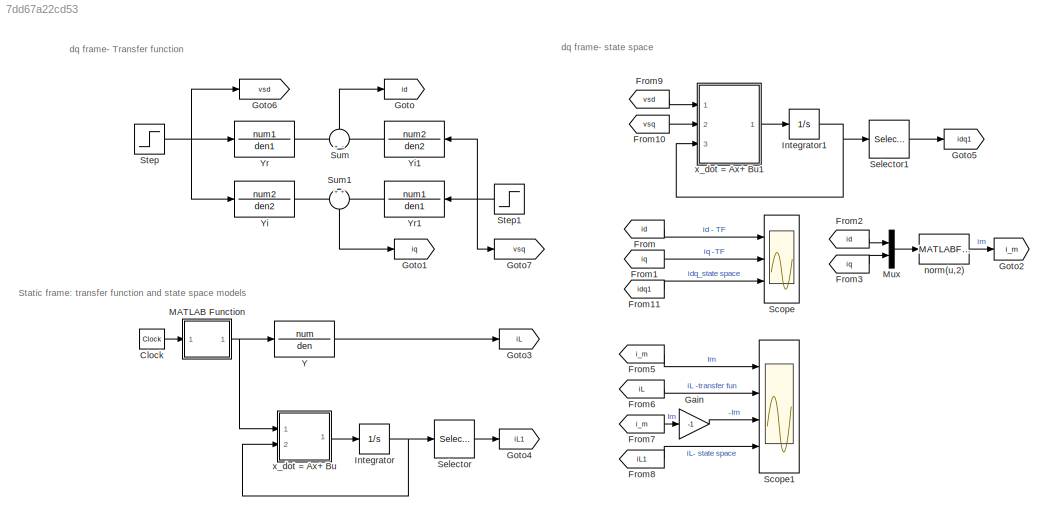
MODEL slx_7dd67a22cd53
KIND model
CONFIG AbsTol = auto
CONFIG EnableMultiTasking = off
CONFIG FixedStep = auto
CONFIG MaxStep = 1e-4
CONFIG MinStep = auto
CONFIG RelTol = 1e-3
CONFIG SampleTimeConstraint = Unconstrained
CONFIG SolverName = VariableStepAuto
CONFIG StartTime = 0.0
CONFIG StopTime = 0.5
BLOCK [Clock] Clock
BLOCK [From] From
  GotoTag = id
BLOCK [From] From1
  GotoTag = iq
BLOCK [From] From10
  GotoTag = vsq
BLOCK [From] From11
  GotoTag = idq1
BLOCK [From] From2
  GotoTag = id
BLOCK [From] From3
  GotoTag = iq
BLOCK [From] From5
  GotoTag = i_m
BLOCK [From] From6
  GotoTag = iL
BLOCK [From] From7
  GotoTag = i_m
BLOCK [From] From8
  GotoTag = iL1
BLOCK [From] From9
  GotoTag = vsd
BLOCK [Gain] Gain
  Gain = -1
BLOCK [Goto] Goto
  GotoTag = id
BLOCK [Goto] Goto1
  GotoTag = iq
BLOCK [Goto] Goto2
  GotoTag = i_m
BLOCK [Goto] Goto3
  GotoTag = iL
BLOCK [Goto] Goto4
  GotoTag = iL1
BLOCK [Goto] Goto5
  GotoTag = idq1
BLOCK [Goto] Goto6
  GotoTag = vsd
BLOCK [Goto] Goto7
  GotoTag = vsq
BLOCK [Integrator] Integrator
  Ports = [1, 1]
BLOCK [Integrator] Integrator1
  Ports = [1, 1]
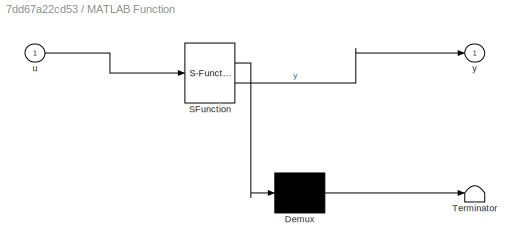
BLOCK [SubSystem] MATLAB Function
  ErrorFcn = Stateflow.Translate.translate
  PermitHierarchicalResolution = ExplicitOnly
  Ports = [1, 1]
  RequestExecContextInheritance = off
  SFBlockType = MATLAB Function
  TreatAsAtomicUnit = on
BLOCK [Demux] MATLAB Function/ Demux 
  Outputs = 1
  Ports = [1, 1]
BLOCK [S-Function] MATLAB Function/ SFunction 
  EnableBusSupport = on
  FunctionName = sf_sfun
  PortCounts = [1 2]
  Ports = [1, 2]
  SFcnIsStateOwnerBlock = off
  SFunctionDeploymentMode = off
  Tag = Stateflow S-Function 2
BLOCK [Terminator] MATLAB Function/ Terminator 
BLOCK [Inport] MATLAB Function/u
BLOCK [Outport] MATLAB Function/y
BLOCK [Mux] Mux
  DisplayOption = bar
  Inputs = 2
  Ports = [2, 1]
BLOCK [Scope] Scope
  Floating = off
  NumInputPorts = 3
  Ports = [3]
  ScopeSpecificationString = Simulink.scopes.TimeScopeBlockCfg('CurrentConfiguration', extmgr.ConfigurationSet(extmgr.Configuration('Core','General UI',true),extmgr.Configuration('Core','Source UI',true),extmgr.Configuration('Sources','WiredSimulink',true),extmgr.Configuration('Visuals','Time Domain',true,'SerializedDisplays',{struct('MinYLimReal','-5.53688','MaxYLimReal','4.34966','YLabelReal','','MinYLimMag','0.00000','MaxY...<+1452ch>
BLOCK [Scope] Scope1
  Floating = off
  NumInputPorts = 4
  Ports = [4]
  ScopeSpecificationString = Simulink.scopes.TimeScopeBlockCfg('CurrentConfiguration', extmgr.ConfigurationSet(extmgr.Configuration('Core','General UI',true),extmgr.Configuration('Core','Source UI',true),extmgr.Configuration('Sources','WiredSimulink',true,'DataLoggingVariableName','ScopeData1'),extmgr.Configuration('Visuals','Time Domain',true,'SerializedDisplays',{struct('MinYLimReal','-6.40207','MaxYLimReal','6.40207','YLab...<+1481ch>
BLOCK [Selector] Selector
  IndexOptions = Index vector (dialog)
  Indices = [1]
  InputPortWidth = 2
  OutputSizes = 1
  Ports = [1, 1]
BLOCK [Selector] Selector1
  IndexOptions = Index vector (dialog)
  Indices = [1 3]
  InputPortWidth = 4
  OutputSizes = 1
  Ports = [1, 1]
BLOCK [Step] Step
  SampleTime = 0
  Time = 0.1
BLOCK [Step] Step1
  After = 0
  SampleTime = 0
BLOCK [Sum] Sum
  Inputs = +-
  NameLocation = right
  Ports = [2, 1]
BLOCK [Sum] Sum1
  NameLocation = left
  Ports = [2, 1]
BLOCK [TransferFcn] Y
  Denominator = den
  Numerator = num
BLOCK [TransferFcn] Yi
  Denominator = den2
  Numerator = num2
BLOCK [TransferFcn] Yi1
  Denominator = den2
  Numerator = num2
BLOCK [TransferFcn] Yr
  Denominator = den1
  Numerator = num1
BLOCK [TransferFcn] Yr1
  Denominator = den1
  Numerator = num1
BLOCK [MATLABFcn] norm(u,2)
  MATLABFcn = norm(u,2)
  Ports = [1, 1]
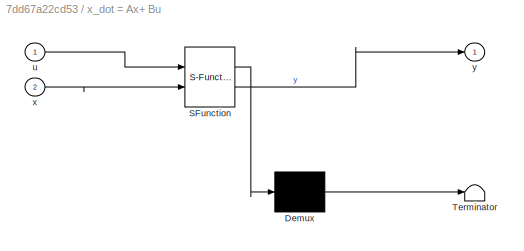
BLOCK [SubSystem] x_dot = Ax+ Bu
  ErrorFcn = Stateflow.Translate.translate
  PermitHierarchicalResolution = ExplicitOnly
  Ports = [2, 1]
  RequestExecContextInheritance = off
  SFBlockType = MATLAB Function
  TreatAsAtomicUnit = on
BLOCK [Demux] x_dot = Ax+ Bu/ Demux 
  Outputs = 1
  Ports = [1, 1]
BLOCK [S-Function] x_dot = Ax+ Bu/ SFunction 
  EnableBusSupport = on
  FunctionName = sf_sfun
  Parameters = A,B
  PortCounts = [2 2]
  Ports = [2, 2]
  SFcnIsStateOwnerBlock = off
  SFunctionDeploymentMode = off
  Tag = Stateflow S-Function 1
BLOCK [Terminator] x_dot = Ax+ Bu/ Terminator 
BLOCK [Inport] x_dot = Ax+ Bu/u
BLOCK [Inport] x_dot = Ax+ Bu/x
  Port = 2
BLOCK [Outport] x_dot = Ax+ Bu/y
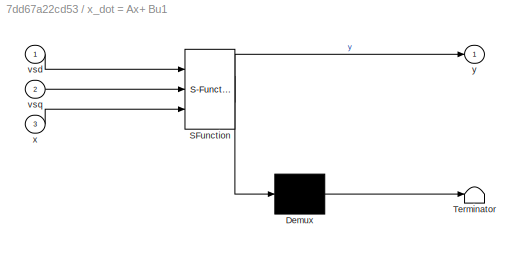
BLOCK [SubSystem] x_dot = Ax+ Bu1
  ErrorFcn = Stateflow.Translate.translate
  PermitHierarchicalResolution = ExplicitOnly
  Ports = [3, 1]
  RequestExecContextInheritance = off
  SFBlockType = MATLAB Function
  TreatAsAtomicUnit = on
BLOCK [Demux] x_dot = Ax+ Bu1/ Demux 
  Outputs = 1
  Ports = [1, 1]
BLOCK [S-Function] x_dot = Ax+ Bu1/ SFunction 
  EnableBusSupport = on
  FunctionName = sf_sfun
  Parameters = A,B
  PortCounts = [3 2]
  Ports = [3, 2]
  SFcnIsStateOwnerBlock = off
  SFunctionDeploymentMode = off
  Tag = Stateflow S-Function 3
BLOCK [Terminator] x_dot = Ax+ Bu1/ Terminator 
BLOCK [Inport] x_dot = Ax+ Bu1/vsd
BLOCK [Inport] x_dot = Ax+ Bu1/vsq
  Port = 2
BLOCK [Inport] x_dot = Ax+ Bu1/x
  Port = 3
BLOCK [Outport] x_dot = Ax+ Bu1/y
ANNOTATION (root): Static frame: transfer function and state space models
ANNOTATION (root): dq frame- Transfer function
ANNOTATION (root): dq frame- state space
LINE Clock:1 -> MATLAB Function:1
LINE From10:1 -> x_dot = Ax+ Bu1:2
LINE From11:1 -> Scope:3
LINE From1:1 -> Scope:2
LINE From2:1 -> Mux:1
LINE From3:1 -> Mux:2
LINE From5:1 -> Scope1:1
LINE From6:1 -> Scope1:2
LINE From7:1 -> Gain:1
LINE From8:1 -> Scope1:4
LINE From9:1 -> x_dot = Ax+ Bu1:1
LINE From:1 -> Scope:1
LINE Gain:1 -> Scope1:3
NET Integrator1:1 -> Selector1:1, x_dot = Ax+ Bu1:3
NET Integrator:1 -> Selector:1, x_dot = Ax+ Bu:2
NET MATLAB Function:1 -> Y:1, x_dot = Ax+ Bu:1
LINE Mux:1 -> norm(u,2):1
LINE Selector1:1 -> Goto5:1
LINE Selector:1 -> Goto4:1
NET Step1:1 -> Goto7:1, Yi1:1, Yr1:1
NET Step:1 -> Goto6:1, Yi:1, Yr:1
LINE Sum1:1 -> Goto1:1
LINE Sum:1 -> Goto:1
LINE Y:1 -> Goto3:1
LINE Yi1:1 -> Sum:2
LINE Yi:1 -> Sum1:1
LINE Yr1:1 -> Sum1:2
LINE Yr:1 -> Sum:1
LINE norm(u,2):1 -> Goto2:1
LINE x_dot = Ax+ Bu1:1 -> Integrator1:1
LINE x_dot = Ax+ Bu:1 -> Integrator:1
note: NET lines group one-source signal fan-out (src -> all destinations, sorted); 1:1 wires keep LINE
CHART x_dot = Ax+ Bu states=1 transitions=1
  STATE_LABEL 'eML_blk_kernel()'
  STATE_LABEL 'SCRIPT:\nfunction y = fcn(u, x, A, B)\n\ny = A*x+B*u;'
CHART MATLAB Function states=1 transitions=1
  STATE_LABEL 'eML_blk_kernel()'
  STATE_LABEL 'SCRIPT:\nfunction y = fcn(u)\nif (u<0.1)\n    y=0;\nelse\ny = cos(377*u);\nend\n'
CHART x_dot = Ax+ Bu1 states=1 transitions=1
  STATE_LABEL 'eML_blk_kernel()'
  STATE_LABEL 'SCRIPT:\nfunction y = fcn(vsd, vsq, x, A, B)\n\nn = length(x)/2; \nx1= x(1:n)+1i*x(n+1:2*n);\nu = vsd+1i*vsq; \ntemp = (A- 1i*377*eye(2))*x1+B*u;\ny = [real(temp); imag(temp)]; '
CHART  states=0 transitions=0
CHART  states=0 transitions=0
CHART  states=0 transitions=0
